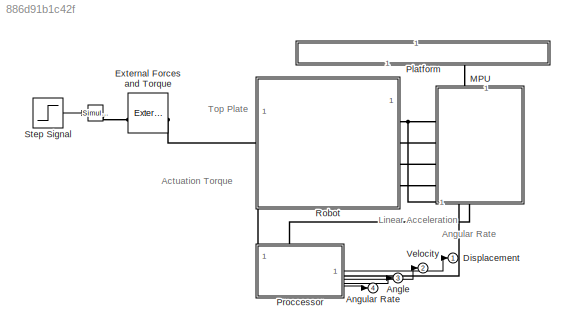
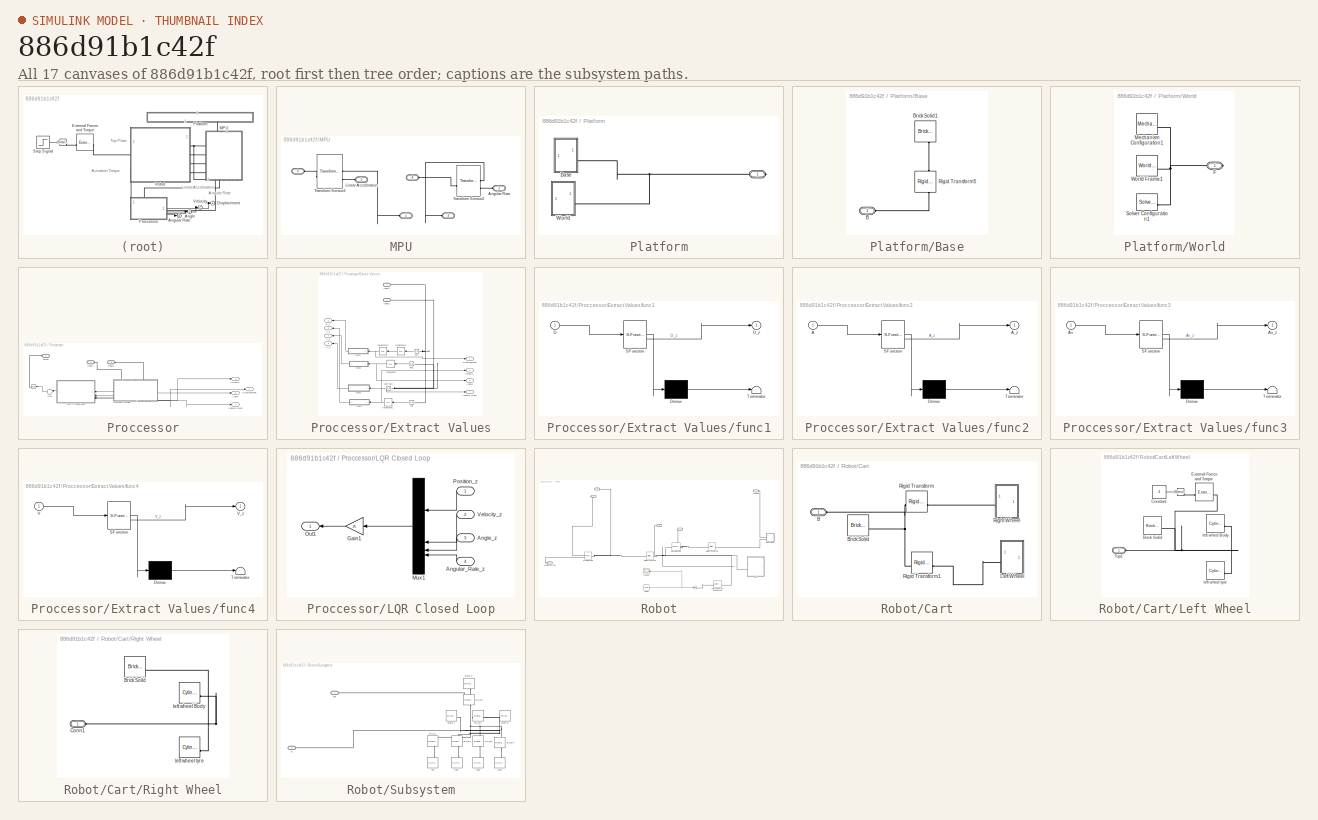
[diagram: thumbnail index - all 17 canvases of the model, root first then tree order]
MODEL slx_886d91b1c42f
KIND model
CONFIG AbsTol = auto
CONFIG EnableMultiTasking = off
CONFIG FixedStep = auto
CONFIG MaxStep = auto
CONFIG MinStep = auto
CONFIG RelTol = 1e-3
CONFIG SampleTimeConstraint = Unconstrained
CONFIG SolverName = VariableStepAuto
CONFIG StartTime = 0.0
CONFIG StopTime = 10
BLOCK [Reference]     REF=nesl_utility/Simulink-PS
Converter
  SourceBlock = nesl_utility/Simulink-PS\nConverter
  SourceType = Simulink-PS\nConverter
BLOCK [Outport] Angle
  Port = 3
BLOCK [Outport] Angular Rate
  Port = 4
BLOCK [Outport] Displacement
BLOCK [Reference] External Forces and Torque  REF=sm_lib/Forces and
Torques/External Force
and Torque
  NameLocation = top
  SourceBlock = sm_lib/Forces and\nTorques/External Force\nand Torque
  SourceType = External Force\nand Torque
BLOCK [SubSystem] MPU
  NameLocation = right
  PortSchema = {"entries":[{"content":{"sides":[{"content":{"connectorIds":["LConn1","LConn2"]},"type":"ConnectorPlacement.EquallySpacedRectSide","uuid":"dd4e63a7-d664-4d32-a966-7ec8ce01e0ae"},{"content":{"side":"RIGHT"},"type":"ConnectorPlacement.EquallySpacedRectSide","uuid":"06115eca-c88a-4fb9-945c-cba1c63961a8"},{"content":{"connectorIds":["LConn3","LConn4","LConn5","LConn6"],"side":"TOP"},"type":"ConnectorP...<+389ch>
BLOCK [PMIOPort] MPU/   
  Port = 6
  Side = Left
BLOCK [PMIOPort] MPU/    
  Port = 5
  Side = Left
BLOCK [PMIOPort] MPU/     
  Port = 4
  Side = Left
BLOCK [PMIOPort] MPU/      
  Port = 3
  Side = Left
BLOCK [PMIOPort] MPU/Angular Rate
  Port = 2
  Side = Left
BLOCK [PMIOPort] MPU/Linear Acceleration
  Side = Left
BLOCK [Reference] MPU/Transform Sensor2  REF=sm_lib/Frames and
Transforms/Transform
Sensor
  SourceBlock = sm_lib/Frames and\nTransforms/Transform\nSensor
  SourceType = Transform\nSensor
BLOCK [Reference] MPU/Transform Sensor3  REF=sm_lib/Frames and
Transforms/Transform
Sensor
  SourceBlock = sm_lib/Frames and\nTransforms/Transform\nSensor
  SourceType = Transform\nSensor
BLOCK [SubSystem] Platform
  NameLocation = left
BLOCK [PMIOPort] Platform/ 
  Side = Right
BLOCK [SubSystem] Platform/Base
  NameLocation = top
BLOCK [PMIOPort] Platform/Base/B
  Side = Left
BLOCK [Reference] Platform/Base/Brick Solid1  REF=sm_lib/Body Elements/Brick Solid
  NameLocation = left
  SourceBlock = sm_lib/Body Elements/Brick Solid
  SourceType = Brick Solid
BLOCK [Reference] Platform/Base/Rigid Transform5  REF=sm_lib/Frames and
Transforms/Rigid
Transform
  NameLocation = right
  SourceBlock = sm_lib/Frames and\nTransforms/Rigid\nTransform
  SourceType = Rigid\nTransform
BLOCK [SubSystem] Platform/World
BLOCK [PMIOPort] Platform/World/F
  Side = Right
BLOCK [Reference] Platform/World/Mechanism Configuration1  REF=sm_lib/Utilities/Mechanism
Configuration
  SourceBlock = sm_lib/Utilities/Mechanism\nConfiguration
  SourceType = Mechanism\nConfiguration
BLOCK [Reference] Platform/World/Solver Configuration1  REF=nesl_utility/Solver
Configuration
  SourceBlock = nesl_utility/Solver\nConfiguration
  SourceType = Solver\nConfiguration
BLOCK [Reference] Platform/World/World Frame1  REF=sm_lib/Frames and
Transforms/World Frame
  SourceBlock = sm_lib/Frames and\nTransforms/World Frame
  SourceType = World Frame
BLOCK [SubSystem] Proccessor
  PortSchema = {"entries":[{"content":{"sides":[{"content":{"connectorIds":["LConn1"]},"type":"ConnectorPlacement.EquallySpacedRectSide","uuid":"c1eb19d1-94e4-4cd1-8abd-9dd8fb04f8ff"},{"content":{"connectorIds":["Out1","Out2","Out3","Out4"],"side":"RIGHT"},"type":"ConnectorPlacement.EquallySpacedRectSide","uuid":"44b3ee11-156a-45b0-a0e2-ddec28524554"},{"content":{"connectorIds":["LConn2","LConn3"],"side":"TOP"},...<+281ch>
BLOCK [Reference] Proccessor/   REF=nesl_utility/Simulink-PS
Converter
  NameLocation = top
  SourceBlock = nesl_utility/Simulink-PS\nConverter
  SourceType = Simulink-PS\nConverter
BLOCK [Outport] Proccessor/Angle
  Port = 3
BLOCK [Outport] Proccessor/Angular Rate
  Port = 4
BLOCK [Outport] Proccessor/Displacement
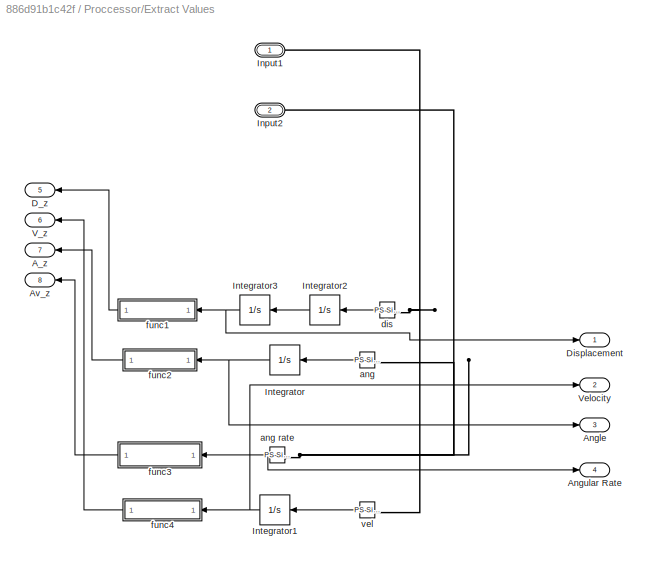
BLOCK [SubSystem] Proccessor/Extract Values
  NameLocation = right
  PortSchema = {"entries":[{"content":{"sides":[{"content":{"connectorIds":["LConn1","LConn2"]},"type":"ConnectorPlacement.EquallySpacedRectSide","uuid":"7f1e2cf8-2b5f-470b-8de1-367e998b20fc"},{"content":{"side":"RIGHT"},"type":"ConnectorPlacement.EquallySpacedRectSide","uuid":"a26c7d5a-d919-4704-848f-fbfa5c9f527f"},{"content":{"connectorIds":["Out5","Out6","Out7","Out8"],"side":"TOP"},"type":"ConnectorPlacement...<+426ch>
BLOCK [Outport] Proccessor/Extract Values/A_z
  Port = 7
BLOCK [Outport] Proccessor/Extract Values/Angle
  Port = 3
BLOCK [Outport] Proccessor/Extract Values/Angular Rate
  Port = 4
BLOCK [Outport] Proccessor/Extract Values/Av_z
  Port = 8
BLOCK [Outport] Proccessor/Extract Values/D_z
  Port = 5
BLOCK [Outport] Proccessor/Extract Values/Displacement
BLOCK [PMIOPort] Proccessor/Extract Values/Input1
  Side = Left
BLOCK [PMIOPort] Proccessor/Extract Values/Input2
  Port = 2
  Side = Left
BLOCK [Integrator] Proccessor/Extract Values/Integrator
  NameLocation = top
BLOCK [Integrator] Proccessor/Extract Values/Integrator1
  NameLocation = top
BLOCK [Integrator] Proccessor/Extract Values/Integrator2
  NameLocation = top
BLOCK [Integrator] Proccessor/Extract Values/Integrator3
  NameLocation = top
BLOCK [Outport] Proccessor/Extract Values/V_z
  Port = 6
BLOCK [Outport] Proccessor/Extract Values/Velocity
  Port = 2
BLOCK [Reference] Proccessor/Extract Values/ang  REF=nesl_utility/PS-Simulink
Converter
  NameLocation = top
  SourceBlock = nesl_utility/PS-Simulink\nConverter
  SourceType = PS-Simulink\nConverter
BLOCK [Reference] Proccessor/Extract Values/ang rate  REF=nesl_utility/PS-Simulink
Converter
  NameLocation = top
  SourceBlock = nesl_utility/PS-Simulink\nConverter
  SourceType = PS-Simulink\nConverter
BLOCK [Reference] Proccessor/Extract Values/dis  REF=nesl_utility/PS-Simulink
Converter
  NameLocation = top
  SourceBlock = nesl_utility/PS-Simulink\nConverter
  SourceType = PS-Simulink\nConverter
BLOCK [SubSystem] Proccessor/Extract Values/func1
  ErrorFcn = Stateflow.Translate.translate
  NameLocation = top
  PermitHierarchicalResolution = ExplicitOnly
  SFBlockType = MATLAB Function
  TreatAsAtomicUnit = on
BLOCK [Demux] Proccessor/Extract Values/func1/ Demux 
  Outputs = 1
BLOCK [S-Function] Proccessor/Extract Values/func1/ SFunction 
  EnableBusSupport = on
  FunctionName = sf_sfun
  PortCounts = [1 2]
  SFcnIsStateOwnerBlock = off
  SFunctionDeploymentMode = off
  Tag = Stateflow S-Function 2
BLOCK [Terminator] Proccessor/Extract Values/func1/ Terminator 
BLOCK [Inport] Proccessor/Extract Values/func1/D
BLOCK [Outport] Proccessor/Extract Values/func1/D_z
BLOCK [SubSystem] Proccessor/Extract Values/func2
  ErrorFcn = Stateflow.Translate.translate
  NameLocation = top
  PermitHierarchicalResolution = ExplicitOnly
  SFBlockType = MATLAB Function
  TreatAsAtomicUnit = on
BLOCK [Demux] Proccessor/Extract Values/func2/ Demux 
  Outputs = 1
BLOCK [S-Function] Proccessor/Extract Values/func2/ SFunction 
  EnableBusSupport = on
  FunctionName = sf_sfun
  PortCounts = [1 2]
  SFcnIsStateOwnerBlock = off
  SFunctionDeploymentMode = off
  Tag = Stateflow S-Function 3
BLOCK [Terminator] Proccessor/Extract Values/func2/ Terminator 
BLOCK [Inport] Proccessor/Extract Values/func2/A
BLOCK [Outport] Proccessor/Extract Values/func2/A_z
BLOCK [SubSystem] Proccessor/Extract Values/func3
  ErrorFcn = Stateflow.Translate.translate
  NameLocation = top
  PermitHierarchicalResolution = ExplicitOnly
  SFBlockType = MATLAB Function
  TreatAsAtomicUnit = on
BLOCK [Demux] Proccessor/Extract Values/func3/ Demux 
  Outputs = 1
BLOCK [S-Function] Proccessor/Extract Values/func3/ SFunction 
  EnableBusSupport = on
  FunctionName = sf_sfun
  PortCounts = [1 2]
  SFcnIsStateOwnerBlock = off
  SFunctionDeploymentMode = off
  Tag = Stateflow S-Function 4
BLOCK [Terminator] Proccessor/Extract Values/func3/ Terminator 
BLOCK [Inport] Proccessor/Extract Values/func3/Av
BLOCK [Outport] Proccessor/Extract Values/func3/Av_z
BLOCK [SubSystem] Proccessor/Extract Values/func4
  ErrorFcn = Stateflow.Translate.translate
  NameLocation = top
  PermitHierarchicalResolution = ExplicitOnly
  SFBlockType = MATLAB Function
  TreatAsAtomicUnit = on
BLOCK [Demux] Proccessor/Extract Values/func4/ Demux 
  Outputs = 1
BLOCK [S-Function] Proccessor/Extract Values/func4/ SFunction 
  EnableBusSupport = on
  FunctionName = sf_sfun
  PortCounts = [1 2]
  SFcnIsStateOwnerBlock = off
  SFunctionDeploymentMode = off
  Tag = Stateflow S-Function 1
BLOCK [Terminator] Proccessor/Extract Values/func4/ Terminator 
BLOCK [Inport] Proccessor/Extract Values/func4/V
BLOCK [Outport] Proccessor/Extract Values/func4/V_z
BLOCK [Reference] Proccessor/Extract Values/vel  REF=nesl_utility/PS-Simulink
Converter
  NameLocation = top
  SourceBlock = nesl_utility/PS-Simulink\nConverter
  SourceType = PS-Simulink\nConverter
BLOCK [PMIOPort] Proccessor/Input1
  Port = 2
  Side = Left
BLOCK [PMIOPort] Proccessor/Input2
  Port = 3
  Side = Left
BLOCK [SubSystem] Proccessor/LQR Closed Loop
  NameLocation = top
BLOCK [Inport] Proccessor/LQR Closed Loop/Angle_z
  Port = 3
BLOCK [Inport] Proccessor/LQR Closed Loop/Angular_Rate_z
  Port = 4
BLOCK [Gain] Proccessor/LQR Closed Loop/Gain1
  Gain = -K
  Multiplication = Matrix(K*u)
  NameLocation = top
BLOCK [Mux] Proccessor/LQR Closed Loop/Mux1
  DisplayOption = bar
  NameLocation = top
BLOCK [Outport] Proccessor/LQR Closed Loop/Out1
BLOCK [Inport] Proccessor/LQR Closed Loop/Position_z
BLOCK [Inport] Proccessor/LQR Closed Loop/Velocity_z
  Port = 2
BLOCK [Sum] Proccessor/Sum
  Inputs = |++
  NameLocation = top
BLOCK [Outport] Proccessor/Velocity
  Port = 2
BLOCK [PMIOPort] Proccessor/output
  Side = Left
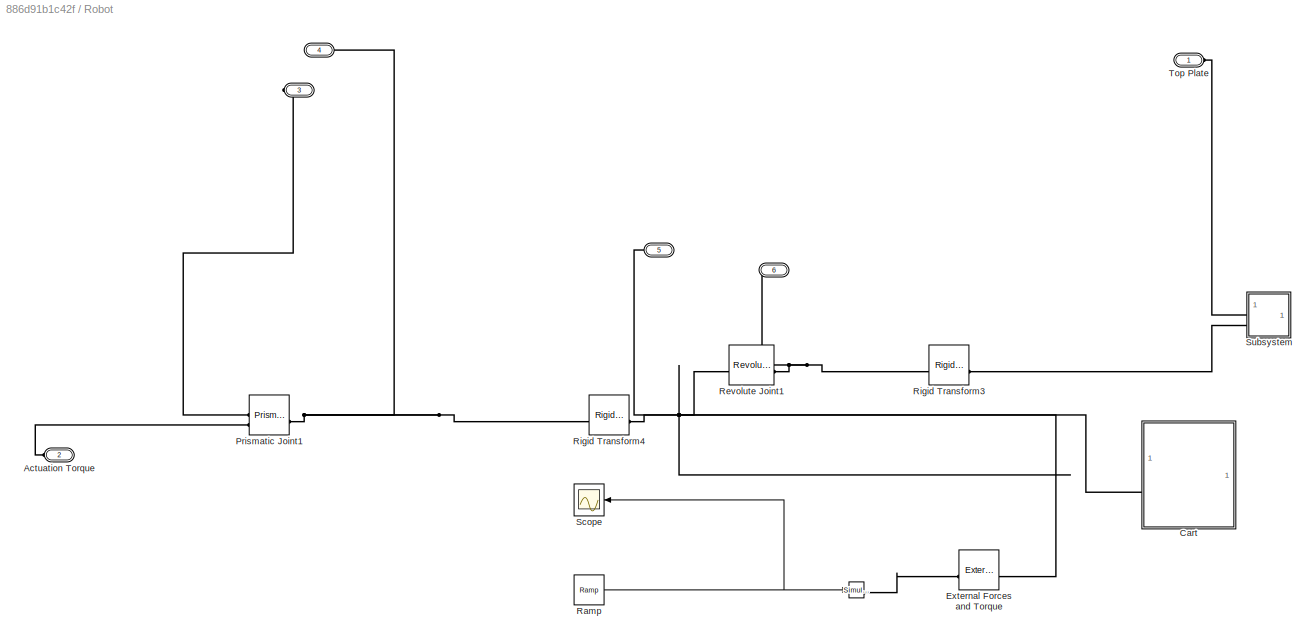
BLOCK [SubSystem] Robot
BLOCK [PMIOPort] Robot/ 
  Port = 4
  Side = Right
BLOCK [Reference] Robot/    REF=nesl_utility/Simulink-PS
Converter
  Commented = on
  SourceBlock = nesl_utility/Simulink-PS\nConverter
  SourceType = Simulink-PS\nConverter
BLOCK [PMIOPort] Robot/    
  Port = 3
  Side = Right
BLOCK [PMIOPort] Robot/     
  Port = 5
  Side = Right
BLOCK [PMIOPort] Robot/       
  Port = 6
  Side = Right
BLOCK [PMIOPort] Robot/Actuation Torque
  Port = 2
  Side = Left
BLOCK [SubSystem] Robot/Cart
BLOCK [PMIOPort] Robot/Cart/B
  Side = Left
BLOCK [Reference] Robot/Cart/Brick Solid  REF=sm_lib/Body Elements/Brick Solid
  SourceBlock = sm_lib/Body Elements/Brick Solid
  SourceType = Brick Solid
BLOCK [SubSystem] Robot/Cart/Left Wheel
BLOCK [Reference] Robot/Cart/Left Wheel/    REF=nesl_utility/Simulink-PS
Converter
  Commented = on
  SourceBlock = nesl_utility/Simulink-PS\nConverter
  SourceType = Simulink-PS\nConverter
BLOCK [Reference] Robot/Cart/Left Wheel/Brick Solid  REF=sm_lib/Body Elements/Brick Solid
  SourceBlock = sm_lib/Body Elements/Brick Solid
  SourceType = Brick Solid
BLOCK [Constant] Robot/Cart/Left Wheel/Constant
  Commented = on
  Value = 4
BLOCK [Reference] Robot/Cart/Left Wheel/External Forces and Torque  REF=sm_lib/Forces and
Torques/External Force
and Torque
  Commented = on
  NameLocation = top
  SourceBlock = sm_lib/Forces and\nTorques/External Force\nand Torque
  SourceType = External Force\nand Torque
BLOCK [PMIOPort] Robot/Cart/Left Wheel/Top1
  Side = Left
BLOCK [Reference] Robot/Cart/Left Wheel/left wheel Body  REF=sm_lib/Body Elements/Cylindrical Solid
  Commented = on
  SourceBlock = sm_lib/Body Elements/Cylindrical Solid
  SourceType = Cylindrical Solid
BLOCK [Reference] Robot/Cart/Left Wheel/left wheel tyre  REF=sm_lib/Body Elements/Cylindrical Solid
  SourceBlock = sm_lib/Body Elements/Cylindrical Solid
  SourceType = Cylindrical Solid
BLOCK [SubSystem] Robot/Cart/Right Wheel
BLOCK [Reference] Robot/Cart/Right Wheel/Brick Solid  REF=sm_lib/Body Elements/Brick Solid
  SourceBlock = sm_lib/Body Elements/Brick Solid
  SourceType = Brick Solid
BLOCK [PMIOPort] Robot/Cart/Right Wheel/Conn1
  Side = Left
BLOCK [Reference] Robot/Cart/Right Wheel/left wheel Body  REF=sm_lib/Body Elements/Cylindrical Solid
  Commented = on
  SourceBlock = sm_lib/Body Elements/Cylindrical Solid
  SourceType = Cylindrical Solid
BLOCK [Reference] Robot/Cart/Right Wheel/left wheel tyre  REF=sm_lib/Body Elements/Cylindrical Solid
  SourceBlock = sm_lib/Body Elements/Cylindrical Solid
  SourceType = Cylindrical Solid
BLOCK [Reference] Robot/Cart/Rigid Transform  REF=sm_lib/Frames and
Transforms/Rigid
Transform
  SourceBlock = sm_lib/Frames and\nTransforms/Rigid\nTransform
  SourceType = Rigid\nTransform
BLOCK [Reference] Robot/Cart/Rigid Transform1  REF=sm_lib/Frames and
Transforms/Rigid
Transform
  SourceBlock = sm_lib/Frames and\nTransforms/Rigid\nTransform
  SourceType = Rigid\nTransform
BLOCK [Reference] Robot/External Forces and Torque  REF=sm_lib/Forces and
Torques/External Force
and Torque
  Commented = on
  NameLocation = top
  SourceBlock = sm_lib/Forces and\nTorques/External Force\nand Torque
  SourceType = External Force\nand Torque
BLOCK [Reference] Robot/Prismatic Joint1  REF=sm_lib/Joints/Prismatic
Joint
  SourceBlock = sm_lib/Joints/Prismatic\nJoint
  SourceType = Prismatic\nJoint
BLOCK [Reference] Robot/Ramp  REF=simulink/Sources/Ramp
  Commented = on
  SourceBlock = simulink/Sources/Ramp
  SourceType = Ramp
BLOCK [Reference] Robot/Revolute Joint1  REF=sm_lib/Joints/Revolute Joint
  SourceBlock = sm_lib/Joints/Revolute Joint
  SourceType = Revolute Joint
BLOCK [Reference] Robot/Rigid Transform3  REF=sm_lib/Frames and
Transforms/Rigid
Transform
  SourceBlock = sm_lib/Frames and\nTransforms/Rigid\nTransform
  SourceType = Rigid\nTransform
BLOCK [Reference] Robot/Rigid Transform4  REF=sm_lib/Frames and
Transforms/Rigid
Transform
  SourceBlock = sm_lib/Frames and\nTransforms/Rigid\nTransform
  SourceType = Rigid\nTransform
BLOCK [Scope] Robot/Scope
  Commented = on
  Floating = off
  NameLocation = top
  NumInputPorts = 1
  ScopeSpecificationString = Simulink.scopes.TimeScopeBlockCfg('CurrentConfiguration', extmgr.ConfigurationSet(extmgr.Configuration('Core','General UI',true),extmgr.Configuration('Core','Source UI',true),extmgr.Configuration('Sources','WiredSimulink',true),extmgr.Configuration('Visuals','Time Domain',true,'SerializedDisplays',{struct('MinYLimReal','-11.5','MaxYLimReal','113.5','YLabelReal','','MinYLimMag','0.00000','MaxYLimMa...<+1400ch>
BLOCK [SubSystem] Robot/Subsystem
BLOCK [PMIOPort] Robot/Subsystem/B
  Port = 2
  Side = Left
BLOCK [PMIOPort] Robot/Subsystem/Top
  Side = Left
BLOCK [Reference] Robot/Subsystem/pl1_pl1  REF=sm_lib/Frames and
Transforms/Rigid
Transform
  NameLocation = left
  SourceBlock = sm_lib/Frames and\nTransforms/Rigid\nTransform
  SourceType = Rigid\nTransform
BLOCK [Reference] Robot/Subsystem/pl1_pl2  REF=sm_lib/Frames and
Transforms/Rigid
Transform
  SourceBlock = sm_lib/Frames and\nTransforms/Rigid\nTransform
  SourceType = Rigid\nTransform
BLOCK [Reference] Robot/Subsystem/pl1_pl3  REF=sm_lib/Frames and
Transforms/Rigid
Transform
  NameLocation = right
  SourceBlock = sm_lib/Frames and\nTransforms/Rigid\nTransform
  SourceType = Rigid\nTransform
BLOCK [Reference] Robot/Subsystem/pl1_pl4  REF=sm_lib/Frames and
Transforms/Rigid
Transform
  NameLocation = left
  SourceBlock = sm_lib/Frames and\nTransforms/Rigid\nTransform
  SourceType = Rigid\nTransform
BLOCK [Reference] Robot/Subsystem/pl1_pl5  REF=sm_lib/Frames and
Transforms/Rigid
Transform
  NameLocation = left
  SourceBlock = sm_lib/Frames and\nTransforms/Rigid\nTransform
  SourceType = Rigid\nTransform
BLOCK [Reference] Robot/Subsystem/pl1_pl6  REF=sm_lib/Frames and
Transforms/Rigid
Transform
  NameLocation = left
  SourceBlock = sm_lib/Frames and\nTransforms/Rigid\nTransform
  SourceType = Rigid\nTransform
BLOCK [Reference] Robot/Subsystem/plate 1  REF=sm_lib/Body Elements/Brick Solid
  NameLocation = left
  SourceBlock = sm_lib/Body Elements/Brick Solid
  SourceType = Brick Solid
BLOCK [Reference] Robot/Subsystem/plate 2  REF=sm_lib/Body Elements/Brick Solid
  NameLocation = right
  SourceBlock = sm_lib/Body Elements/Brick Solid
  SourceType = Brick Solid
BLOCK [Reference] Robot/Subsystem/plate 3  REF=sm_lib/Body Elements/Brick Solid
  NameLocation = top
  SourceBlock = sm_lib/Body Elements/Brick Solid
  SourceType = Brick Solid
BLOCK [Reference] Robot/Subsystem/rod  REF=sm_lib/Body Elements/Cylindrical Solid
  NameLocation = right
  SourceBlock = sm_lib/Body Elements/Cylindrical Solid
  SourceType = Cylindrical Solid
BLOCK [Reference] Robot/Subsystem/rod1  REF=sm_lib/Body Elements/Cylindrical Solid
  NameLocation = right
  SourceBlock = sm_lib/Body Elements/Cylindrical Solid
  SourceType = Cylindrical Solid
BLOCK [Reference] Robot/Subsystem/rod2  REF=sm_lib/Body Elements/Cylindrical Solid
  NameLocation = right
  SourceBlock = sm_lib/Body Elements/Cylindrical Solid
  SourceType = Cylindrical Solid
BLOCK [Reference] Robot/Subsystem/rod3  REF=sm_lib/Body Elements/Cylindrical Solid
  NameLocation = right
  SourceBlock = sm_lib/Body Elements/Cylindrical Solid
  SourceType = Cylindrical Solid
BLOCK [PMIOPort] Robot/Top Plate
  Side = Left
BLOCK [Step] Step Signal
  After = 0
  Before = 20
  NameLocation = top
  SampleTime = 0
  Time = 0.01
BLOCK [Outport] Velocity
  Port = 2
ANNOTATION (root): Actuation Torque
ANNOTATION (root): Angular Rate
ANNOTATION (root): Top Plate
ANNOTATION (root): Linear Acceleration
NET Proccessor/Extract Values/Integrator1:1 -> Proccessor/Extract Values/Velocity:1, Proccessor/Extract Values/func4:1
LINE Proccessor/Extract Values/Integrator2:1 -> Proccessor/Extract Values/Integrator3:1
NET Proccessor/Extract Values/Integrator3:1 -> Proccessor/Extract Values/Displacement:1, Proccessor/Extract Values/func1:1
NET Proccessor/Extract Values/Integrator:1 -> Proccessor/Extract Values/Angle:1, Proccessor/Extract Values/func2:1
NET Proccessor/Extract Values/ang rate:1 -> Proccessor/Extract Values/Angular Rate:1, Proccessor/Extract Values/func3:1
LINE Proccessor/Extract Values/ang:1 -> Proccessor/Extract Values/Integrator:1
LINE Proccessor/Extract Values/dis:1 -> Proccessor/Extract Values/Integrator2:1
LINE Proccessor/Extract Values/func1:1 -> Proccessor/Extract Values/D_z:1
LINE Proccessor/Extract Values/func2:1 -> Proccessor/Extract Values/A_z:1
LINE Proccessor/Extract Values/func3:1 -> Proccessor/Extract Values/Av_z:1
LINE Proccessor/Extract Values/func4:1 -> Proccessor/Extract Values/V_z:1
LINE Proccessor/Extract Values/vel:1 -> Proccessor/Extract Values/Integrator1:1
LINE Proccessor/Extract Values:1 -> Proccessor/Displacement:1
LINE Proccessor/Extract Values:2 -> Proccessor/Velocity:1
LINE Proccessor/Extract Values:3 -> Proccessor/Angle:1
LINE Proccessor/Extract Values:4 -> Proccessor/Angular Rate:1
LINE Proccessor/Extract Values:5 -> Proccessor/LQR Closed Loop:1
LINE Proccessor/Extract Values:6 -> Proccessor/LQR Closed Loop:2
LINE Proccessor/Extract Values:7 -> Proccessor/LQR Closed Loop:3
LINE Proccessor/Extract Values:8 -> Proccessor/LQR Closed Loop:4
LINE Proccessor/LQR Closed Loop/Angle_z:1 -> Proccessor/LQR Closed Loop/Mux1:3
LINE Proccessor/LQR Closed Loop/Angular_Rate_z:1 -> Proccessor/LQR Closed Loop/Mux1:4
LINE Proccessor/LQR Closed Loop/Gain1:1 -> Proccessor/LQR Closed Loop/Out1:1
LINE Proccessor/LQR Closed Loop/Mux1:1 -> Proccessor/LQR Closed Loop/Gain1:1
LINE Proccessor/LQR Closed Loop/Position_z:1 -> Proccessor/LQR Closed Loop/Mux1:1
LINE Proccessor/LQR Closed Loop/Velocity_z:1 -> Proccessor/LQR Closed Loop/Mux1:2
LINE Proccessor/LQR Closed Loop:1 -> Proccessor/Sum:1
LINE Proccessor/Sum:1 -> Proccessor/ :1
LINE Proccessor:1 -> Displacement:1
LINE Proccessor:2 -> Velocity:1
LINE Proccessor:3 -> Angle:1
LINE Proccessor:4 -> Angular Rate:1
LINE Robot/Cart/Left Wheel/Constant:1 -> Robot/Cart/Left Wheel/  :1
NET Robot/Ramp:1 -> Robot/  :1, Robot/Scope:1
LINE Step Signal:1 ->   :1
PLINE   :RConn1 -- External Forces and Torque:LConn1
PLINE External Forces and Torque:RConn1 -- Robot:LConn1
PLINE MPU/      :RConn1 -- MPU/Transform Sensor2:RConn1
PLINE MPU/     :RConn1 -- MPU/Transform Sensor2:LConn1
PLINE MPU/    :RConn1 -- MPU/Transform Sensor3:RConn1
PLINE MPU/   :RConn1 -- MPU/Transform Sensor3:LConn1
PLINE MPU/Angular Rate:RConn1 -- MPU/Transform Sensor2:RConn2
PLINE MPU/Linear Acceleration:RConn1 -- MPU/Transform Sensor3:RConn2
PLINE MPU:LConn1 -- Proccessor:LConn2
PLINE MPU:LConn2 -- Proccessor:LConn3
PLINE MPU:LConn3 -- Robot:RConn4
PLINE MPU:LConn4 -- Robot:RConn3
PLINE MPU:LConn5 -- Robot:RConn2
PNET net1: MPU:LConn6 -- Platform:RConn1 -- Robot:RConn1
PNET net2: Platform/ :RConn1 -- Platform/Base:LConn1 -- Platform/World:RConn1
PLINE Platform/Base/B:RConn1 -- Platform/Base/Rigid Transform5:LConn1
PLINE Platform/Base/Brick Solid1:RConn1 -- Platform/Base/Rigid Transform5:RConn1
PNET net3: Platform/World/F:RConn1 -- Platform/World/Mechanism Configuration1:RConn1 -- Platform/World/Solver Configuration1:RConn1 -- Platform/World/World Frame1:RConn1
PLINE Proccessor/ :RConn1 -- Proccessor/output:RConn1
PNET net4: Proccessor/Extract Values/Input1:RConn1 -- Proccessor/Extract Values/dis:LConn1 -- Proccessor/Extract Values/vel:LConn1
PNET net5: Proccessor/Extract Values/Input2:RConn1 -- Proccessor/Extract Values/ang rate:LConn1 -- Proccessor/Extract Values/ang:LConn1
PLINE Proccessor/Extract Values:LConn1 -- Proccessor/Input1:RConn1
PLINE Proccessor/Extract Values:LConn2 -- Proccessor/Input2:RConn1
PLINE Proccessor:LConn1 -- Robot:LConn2
PNET net6: Robot/       :RConn1 -- Robot/Revolute Joint1:RConn1 -- Robot/Rigid Transform3:LConn1
PNET net7: Robot/     :RConn1 -- Robot/Cart:LConn1 -- Robot/External Forces and Torque:RConn1 -- Robot/Revolute Joint1:LConn1 -- Robot/Rigid Transform4:RConn1
PLINE Robot/    :RConn1 -- Robot/Prismatic Joint1:LConn1
PLINE Robot/  :RConn1 -- Robot/External Forces and Torque:LConn1
PNET net8: Robot/ :RConn1 -- Robot/Prismatic Joint1:RConn1 -- Robot/Rigid Transform4:LConn1
PLINE Robot/Actuation Torque:RConn1 -- Robot/Prismatic Joint1:LConn2
PNET net9: Robot/Cart/B:RConn1 -- Robot/Cart/Brick Solid:RConn1 -- Robot/Cart/Rigid Transform1:LConn1 -- Robot/Cart/Rigid Transform:LConn1
PLINE Robot/Cart/Left Wheel/  :RConn1 -- Robot/Cart/Left Wheel/External Forces and Torque:LConn1
PNET net10: Robot/Cart/Left Wheel/Brick Solid:RConn1 -- Robot/Cart/Left Wheel/External Forces and Torque:RConn1 -- Robot/Cart/Left Wheel/Top1:RConn1 -- Robot/Cart/Left Wheel/left wheel Body:RConn1 -- Robot/Cart/Left Wheel/left wheel tyre:RConn1
PLINE Robot/Cart/Left Wheel:LConn1 -- Robot/Cart/Rigid Transform1:RConn1
PNET net11: Robot/Cart/Right Wheel/Brick Solid:RConn1 -- Robot/Cart/Right Wheel/Conn1:RConn1 -- Robot/Cart/Right Wheel/left wheel Body:RConn1 -- Robot/Cart/Right Wheel/left wheel tyre:RConn1
PLINE Robot/Cart/Right Wheel:LConn1 -- Robot/Cart/Rigid Transform:RConn1
PLINE Robot/Rigid Transform3:RConn1 -- Robot/Subsystem:LConn2
PNET net12: Robot/Subsystem/B:RConn1 -- Robot/Subsystem/pl1_pl1:LConn1 -- Robot/Subsystem/pl1_pl2:LConn1 -- Robot/Subsystem/pl1_pl3:LConn1 -- Robot/Subsystem/pl1_pl4:LConn1 -- Robot/Subsystem/pl1_pl5:LConn1 -- Robot/Subsystem/pl1_pl6:LConn1 -- Robot/Subsystem/plate 1:RConn1
PNET net13: Robot/Subsystem/Top:RConn1 -- Robot/Subsystem/pl1_pl3:RConn1 -- Robot/Subsystem/plate 3:RConn1
PLINE Robot/Subsystem/pl1_pl1:RConn1 -- Robot/Subsystem/rod:RConn1
PLINE Robot/Subsystem/pl1_pl2:RConn1 -- Robot/Subsystem/plate 2:RConn1
PLINE Robot/Subsystem/pl1_pl4:RConn1 -- Robot/Subsystem/rod1:RConn1
PLINE Robot/Subsystem/pl1_pl5:RConn1 -- Robot/Subsystem/rod2:RConn1
PLINE Robot/Subsystem/pl1_pl6:RConn1 -- Robot/Subsystem/rod3:RConn1
PLINE Robot/Subsystem:LConn1 -- Robot/Top Plate:RConn1
note: NET lines group one-source signal fan-out (src -> all destinations, sorted); 1:1 wires keep LINE; PNET lines group multi-terminal physical nets as a canonical sorted terminal list (undirected conserving connections); 2-terminal nets keep the pairwise PLINE form
CHART Proccessor/Extract Values/func1 states=1 transitions=1
  STATE_LABEL 'eML_blk_kernel()'
  STATE_LABEL 'SCRIPT:\nfunction D_z = fcn(D)\n\nD_z= squeeze(D(3,:,:));\n'
CHART Proccessor/Extract Values/func2 states=1 transitions=1
  STATE_LABEL 'eML_blk_kernel()'
  STATE_LABEL 'SCRIPT:\nfunction A_z = fcn(A)\n\nA_z= squeeze(A(3,:,:));\n'
CHART Proccessor/Extract Values/func3 states=1 transitions=1
  STATE_LABEL 'eML_blk_kernel()'
  STATE_LABEL 'SCRIPT:\nfunction Av_z= fcn(Av)\n\nAv_z = squeeze(Av(3,:,:));\n'
CHART Proccessor/Extract Values/func4 states=1 transitions=1
  STATE_LABEL 'eML_blk_kernel()'
  STATE_LABEL 'SCRIPT:\nfunction V_z= fcn(V)\n\nV_z = squeeze(V(3,:,:));\n'
CHART  states=0 transitions=0
CHART  states=0 transitions=0
CHART  states=0 transitions=0
CHART  states=0 transitions=0
